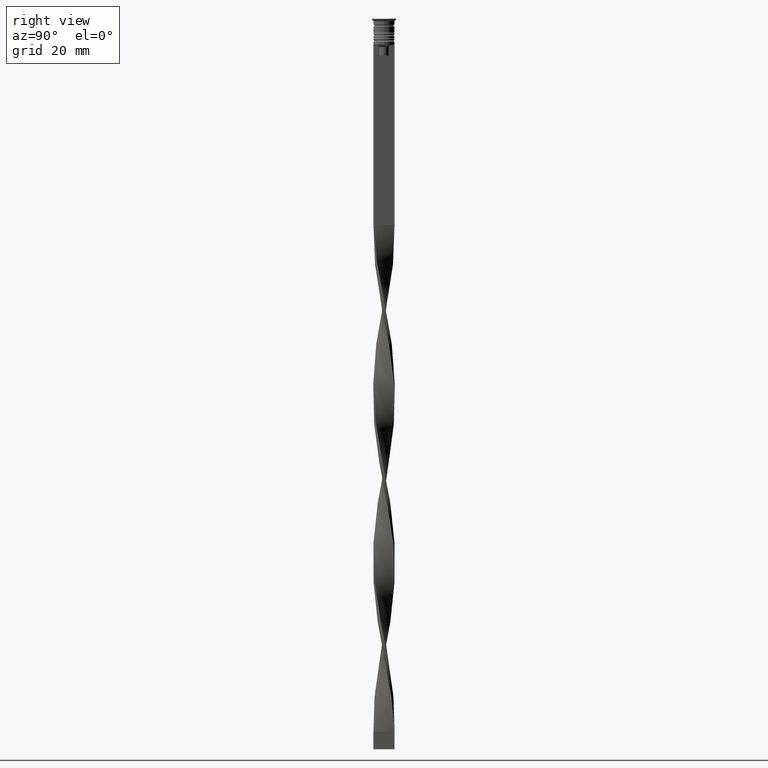
[diagram: clean part render]
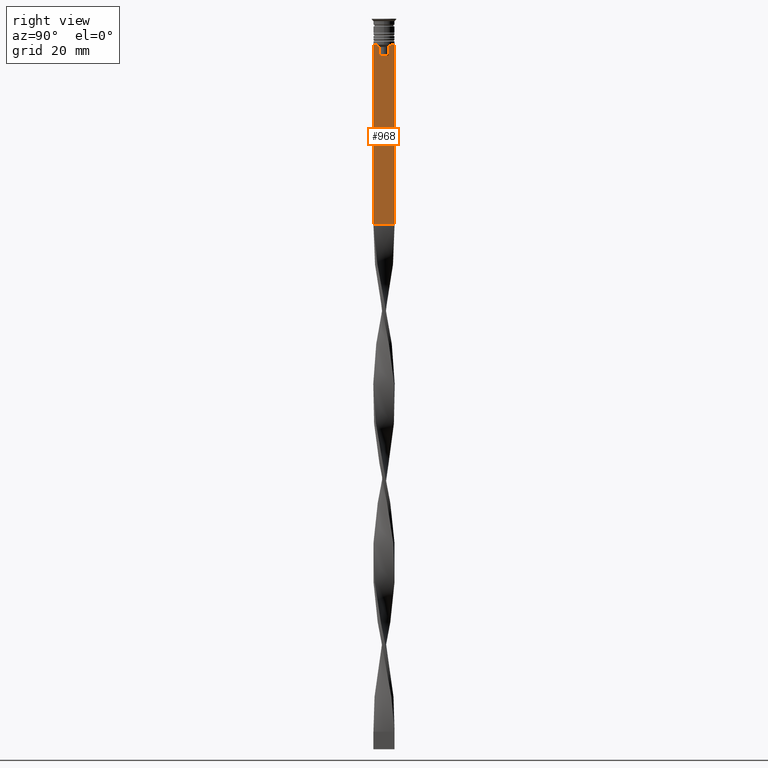
[diagram: same view with one face highlighted and labeled with its STEP entity id]
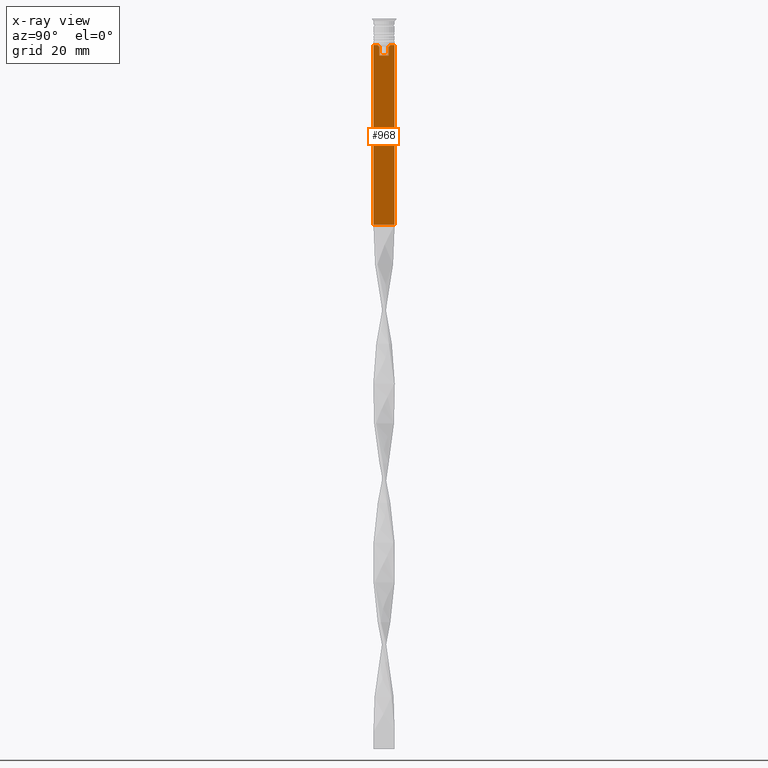
[diagram: x-ray of the same camera — body ghosted, the highlighted face saturated]
A machine part, right view. The second image highlights one B-rep face of the part: STEP entity #968.
The next image is the same camera in x-ray: the body ghosted, the highlighted face saturated — about 0% of this face is hidden behind the body in this view.
In plain terms, the highlighted planar face has unit normal (-1, 0, 0).
Its self-contained STEP definition (entity closure, byte-faithful):
#42 = EDGE_CURVE ( 'NONE', #780, #1738, #2895, .T. ) ;
#68 = VERTEX_POINT ( 'NONE', #2567 ) ;
#74 = ORIENTED_EDGE ( 'NONE', *, *, #3520, .F. ) ;
#81 = CARTESIAN_POINT ( 'NONE',  ( 0.4999999999999998890, -3.000000000000000000, -7.500000000000000000 ) ) ;
#117 = B_SPLINE_CURVE_WITH_KNOTS ( 'NONE', 3,
 ( #3023, #3039, #459, #756 ),
 .UNSPECIFIED., .F., .F.,
 ( 4, 4 ),
 ( 0.007225659348748082224, 0.007950554640278054835 ),
 .UNSPECIFIED. ) ;
#145 = LINE ( 'NONE', #453, #1402 ) ;
#166 = LINE ( 'NONE', #1589, #3461 ) ;
#186 = CARTESIAN_POINT ( 'NONE',  ( 0.4999999999999998890, -3.000000000000000000, -7.500000000000000000 ) ) ;
#233 = VERTEX_POINT ( 'NONE', #1259 ) ;
#248 = LINE ( 'NONE', #3374, #2373 ) ;
#284 = DIRECTION ( 'NONE',  ( 0.000000000000000000, 1.000000000000000000, 0.000000000000000000 ) ) ;
#318 = VERTEX_POINT ( 'NONE', #2638 ) ;
#336 = VERTEX_POINT ( 'NONE', #2964 ) ;
#382 = CARTESIAN_POINT ( 'NONE',  ( 0.4999999999999998890, -3.000000000000000000, -1.417237469701779329 ) ) ;
#385 = LINE ( 'NONE', #1749, #804 ) ;
#453 = CARTESIAN_POINT ( 'NONE',  ( 0.4999999999999998890, 3.000000000000000000, -1.417237469701779329 ) ) ;
#456 = VECTOR ( 'NONE', #2128, 1000.000000000000000 ) ;
#459 = CARTESIAN_POINT ( 'NONE',  ( 0.4999999999999998890, -1.659011726860414093, -7.667884880598472286 ) ) ;
#514 = ORIENTED_EDGE ( 'NONE', *, *, #1614, .T. ) ;
#651 = CARTESIAN_POINT ( 'NONE',  ( 0.4999999999999998890, -3.000000000000000000, -58.50000000000000000 ) ) ;
#669 = CARTESIAN_POINT ( 'NONE',  ( 0.4999999999999998890, 1.484355510416485835, -7.834966642958598015 ) ) ;
#697 = CARTESIAN_POINT ( 'NONE',  ( 0.4999999999999998890, -3.000000000000000000, -1.417237469701779329 ) ) ;
#720 = EDGE_CURVE ( 'NONE', #336, #318, #248, .T. ) ;
#756 = CARTESIAN_POINT ( 'NONE',  ( 0.4999999999999998890, -1.833030277982335754, -7.500000000000000000 ) ) ;
#780 = VERTEX_POINT ( 'NONE', #651 ) ;
#794 = ORIENTED_EDGE ( 'NONE', *, *, #2438, .T. ) ;
#804 = VECTOR ( 'NONE', #2081, 1000.000000000000000 ) ;
#867 = LINE ( 'NONE', #2016, #2320 ) ;
#968 = ADVANCED_FACE ( 'NONE', ( #1234 ), #2956, .F. ) ;
#1016 = EDGE_CURVE ( 'NONE', #2254, #1497, #1609, .T. ) ;
#1041 = DIRECTION ( 'NONE',  ( 0.000000000000000000, -1.000000000000000000, 0.000000000000000000 ) ) ;
#1061 = CARTESIAN_POINT ( 'NONE',  ( 0.4999999999999998890, -2.856571371417139904, -7.500000000000000000 ) ) ;
#1115 = CARTESIAN_POINT ( 'NONE',  ( 0.4999999999999998890, -3.000000000000000000, -58.50000000000000000 ) ) ;
#1234 = FACE_OUTER_BOUND ( 'NONE', #1265, .T. ) ;
#1259 = CARTESIAN_POINT ( 'NONE',  ( 0.4999999999999998890, 1.307669683062199439, -8.000000000000000000 ) ) ;
#1265 = EDGE_LOOP ( 'NONE', ( #3128, #1648, #1917, #2852, #514, #3230, #1730, #1439, #3732, #3177, #74, #794 ) ) ;
#1323 = AXIS2_PLACEMENT_3D ( 'NONE', #382, #2112, #3256 ) ;
#1399 = EDGE_CURVE ( 'NONE', #2429, #2330, #3592, .T. ) ;
#1402 = VECTOR ( 'NONE', #2705, 1000.000000000000000 ) ;
#1439 = ORIENTED_EDGE ( 'NONE', *, *, #1016, .T. ) ;
#1496 = CARTESIAN_POINT ( 'NONE',  ( 0.4999999999999998890, 1.307669683062199439, -8.000000000000000000 ) ) ;
#1497 = VERTEX_POINT ( 'NONE', #81 ) ;
#1589 = CARTESIAN_POINT ( 'NONE',  ( 0.4999999999999998890, 1.307669683062199439, 0.000000000000000000 ) ) ;
#1609 = LINE ( 'NONE', #186, #2008 ) ;
#1614 = EDGE_CURVE ( 'NONE', #2330, #68, #2775, .T. ) ;
#1648 = ORIENTED_EDGE ( 'NONE', *, *, #1763, .T. ) ;
#1730 = ORIENTED_EDGE ( 'NONE', *, *, #2667, .T. ) ;
#1738 = VERTEX_POINT ( 'NONE', #2473 ) ;
#1749 = CARTESIAN_POINT ( 'NONE',  ( 0.4999999999999998890, -3.000000000000000000, -7.500000000000000000 ) ) ;
#1763 = EDGE_CURVE ( 'NONE', #318, #233, #3105, .T. ) ;
#1917 = ORIENTED_EDGE ( 'NONE', *, *, #3238, .T. ) ;
#2008 = VECTOR ( 'NONE', #1041, 1000.000000000000000 ) ;
#2016 = CARTESIAN_POINT ( 'NONE',  ( 0.4999999999999998890, -3.000000000000000000, -7.500000000000000000 ) ) ;
#2035 = VERTEX_POINT ( 'NONE', #3014 ) ;
#2081 = DIRECTION ( 'NONE',  ( 0.000000000000000000, -1.000000000000000000, 0.000000000000000000 ) ) ;
#2094 = LINE ( 'NONE', #697, #456 ) ;
#2112 = DIRECTION ( 'NONE',  ( -1.000000000000000000, 0.000000000000000000, 0.000000000000000000 ) ) ;
#2128 = DIRECTION ( 'NONE',  ( 0.000000000000000000, 0.000000000000000000, -1.000000000000000000 ) ) ;
#2190 = VECTOR ( 'NONE', #3688, 1000.000000000000000 ) ;
#2227 = CARTESIAN_POINT ( 'NONE',  ( 0.4999999999999998890, -1.833030277982335754, -7.500000000000000000 ) ) ;
#2254 = VERTEX_POINT ( 'NONE', #1061 ) ;
#2320 = VECTOR ( 'NONE', #3157, 1000.000000000000000 ) ;
#2330 = VERTEX_POINT ( 'NONE', #3505 ) ;
#2373 = VECTOR ( 'NONE', #3085, 1000.000000000000000 ) ;
#2413 = CARTESIAN_POINT ( 'NONE',  ( 0.4999999999999998890, 1.833030277982335754, -7.500000000000000000 ) ) ;
#2429 = VERTEX_POINT ( 'NONE', #3735 ) ;
#2438 = EDGE_CURVE ( 'NONE', #2035, #336, #867, .T. ) ;
#2473 = CARTESIAN_POINT ( 'NONE',  ( 0.4999999999999998890, 3.000000000000000000, -58.50000000000000000 ) ) ;
#2485 = EDGE_CURVE ( 'NONE', #1497, #780, #2094, .T. ) ;
#2494 = DIRECTION ( 'NONE',  ( 0.000000000000000000, 0.000000000000000000, -1.000000000000000000 ) ) ;
#2552 = VECTOR ( 'NONE', #2996, 1000.000000000000000 ) ;
#2567 = CARTESIAN_POINT ( 'NONE',  ( 0.4999999999999998890, -1.307669683062199439, -8.000000000000000000 ) ) ;
#2638 = CARTESIAN_POINT ( 'NONE',  ( 0.4999999999999998890, 1.833030277982335754, -7.500000000000000000 ) ) ;
#2667 = EDGE_CURVE ( 'NONE', #3734, #2254, #385, .T. ) ;
#2705 = DIRECTION ( 'NONE',  ( 0.000000000000000000, 0.000000000000000000, -1.000000000000000000 ) ) ;
#2775 = LINE ( 'NONE', #3361, #2190 ) ;
#2852 = ORIENTED_EDGE ( 'NONE', *, *, #1399, .T. ) ;
#2895 = LINE ( 'NONE', #1115, #3319 ) ;
#2956 = PLANE ( 'NONE',  #1323 ) ;
#2964 = CARTESIAN_POINT ( 'NONE',  ( 0.4999999999999998890, 2.856571371417139904, -7.500000000000000000 ) ) ;
#2996 = DIRECTION ( 'NONE',  ( 0.000000000000000000, -1.000000000000000000, 0.000000000000000000 ) ) ;
#3014 = CARTESIAN_POINT ( 'NONE',  ( 0.4999999999999998890, 3.000000000000000000, -7.500000000000000000 ) ) ;
#3023 = CARTESIAN_POINT ( 'NONE',  ( 0.4999999999999998890, -1.307669683062199439, -8.000000000000000000 ) ) ;
#3039 = CARTESIAN_POINT ( 'NONE',  ( 0.4999999999999998890, -1.484307477388859153, -7.835011508197190722 ) ) ;
#3085 = DIRECTION ( 'NONE',  ( 0.000000000000000000, -1.000000000000000000, 0.000000000000000000 ) ) ;
#3105 = B_SPLINE_CURVE_WITH_KNOTS ( 'NONE', 3,
 ( #2413, #3540, #669, #1496 ),
 .UNSPECIFIED., .F., .F.,
 ( 4, 4 ),
 ( 0.003278537493109848298, 0.004003794023484941178 ),
 .UNSPECIFIED. ) ;
#3128 = ORIENTED_EDGE ( 'NONE', *, *, #720, .T. ) ;
#3157 = DIRECTION ( 'NONE',  ( 0.000000000000000000, -1.000000000000000000, 0.000000000000000000 ) ) ;
#3177 = ORIENTED_EDGE ( 'NONE', *, *, #42, .T. ) ;
#3192 = EDGE_CURVE ( 'NONE', #68, #3734, #117, .T. ) ;
#3230 = ORIENTED_EDGE ( 'NONE', *, *, #3192, .T. ) ;
#3232 = CARTESIAN_POINT ( 'NONE',  ( 0.4999999999999998890, 1.399999999999997691, -10.49999999999999822 ) ) ;
#3238 = EDGE_CURVE ( 'NONE', #233, #2429, #166, .T. ) ;
#3256 = DIRECTION ( 'NONE',  ( 0.000000000000000000, 0.000000000000000000, 1.000000000000000000 ) ) ;
#3319 = VECTOR ( 'NONE', #284, 1000.000000000000000 ) ;
#3361 = CARTESIAN_POINT ( 'NONE',  ( 0.4999999999999998890, -1.307669683062199439, 0.000000000000000000 ) ) ;
#3374 = CARTESIAN_POINT ( 'NONE',  ( 0.4999999999999998890, -3.000000000000000000, -7.500000000000000000 ) ) ;
#3461 = VECTOR ( 'NONE', #2494, 1000.000000000000000 ) ;
#3505 = CARTESIAN_POINT ( 'NONE',  ( 0.4999999999999998890, -1.307669683062199439, -10.49999999999999822 ) ) ;
#3520 = EDGE_CURVE ( 'NONE', #2035, #1738, #145, .T. ) ;
#3540 = CARTESIAN_POINT ( 'NONE',  ( 0.4999999999999998890, 1.659046061654642967, -7.667851756010362507 ) ) ;
#3592 = LINE ( 'NONE', #3232, #2552 ) ;
#3688 = DIRECTION ( 'NONE',  ( -0.000000000000000000, -0.000000000000000000, 1.000000000000000000 ) ) ;
#3732 = ORIENTED_EDGE ( 'NONE', *, *, #2485, .T. ) ;
#3734 = VERTEX_POINT ( 'NONE', #2227 ) ;
#3735 = CARTESIAN_POINT ( 'NONE',  ( 0.4999999999999998890, 1.307669683062199439, -10.49999999999999822 ) ) ;